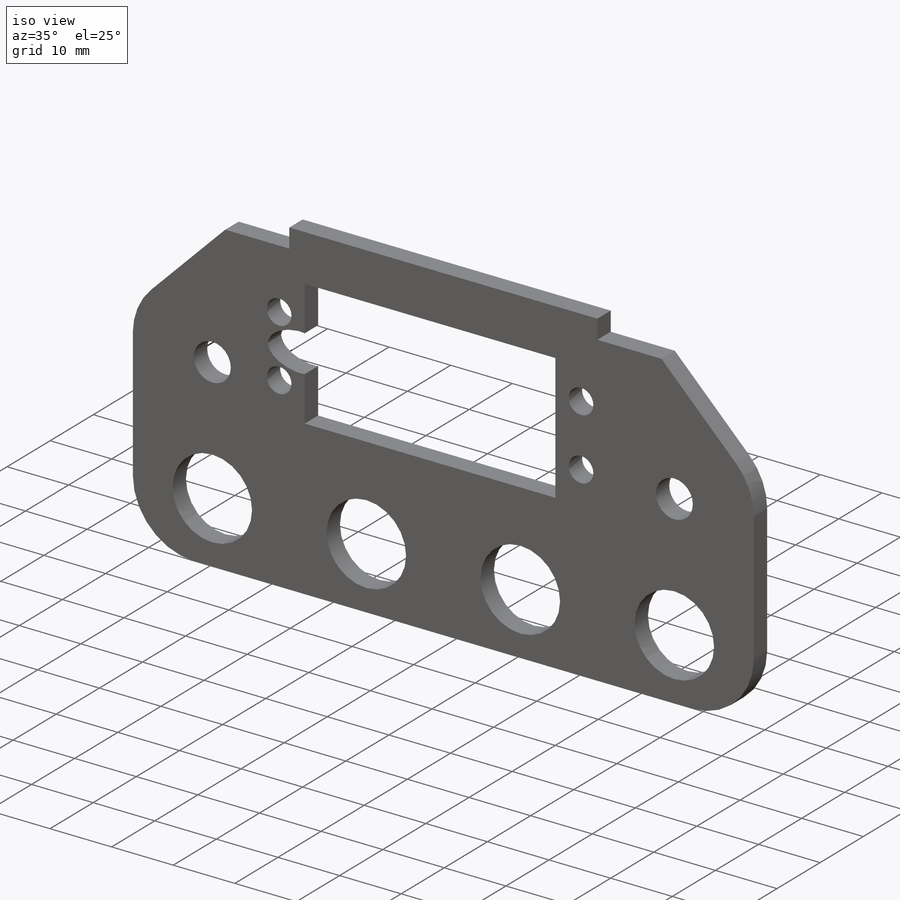
[diagram: iso view]
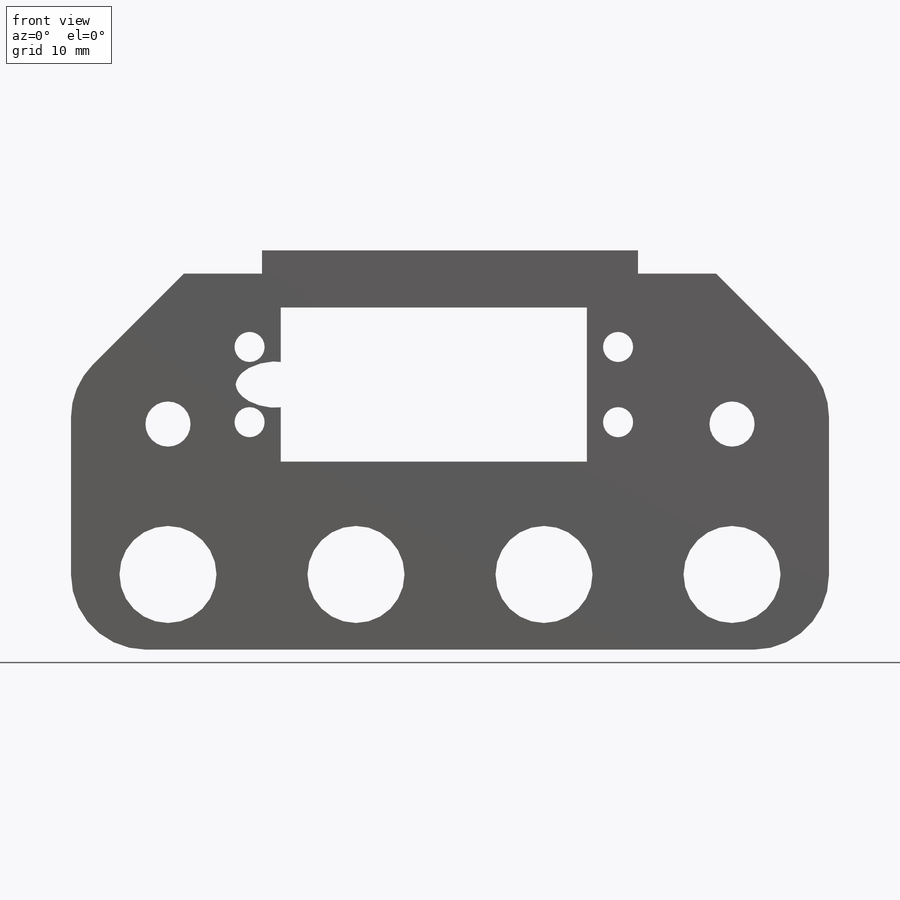
[diagram: front view]
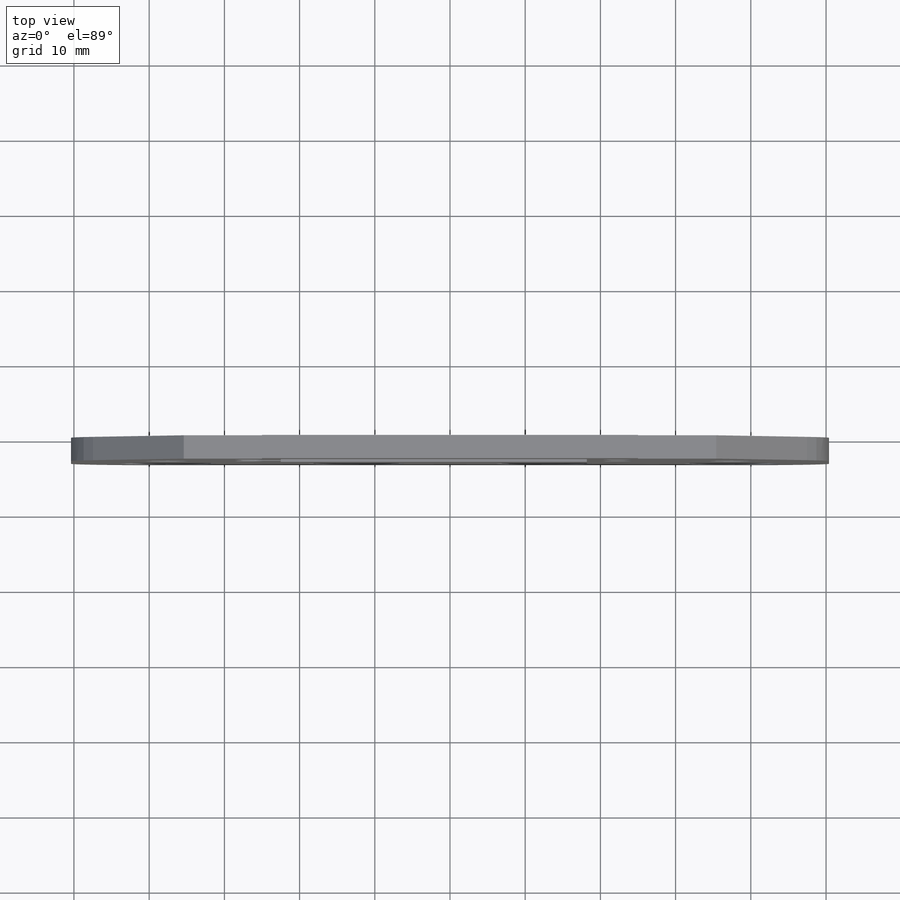
[diagram: top view]
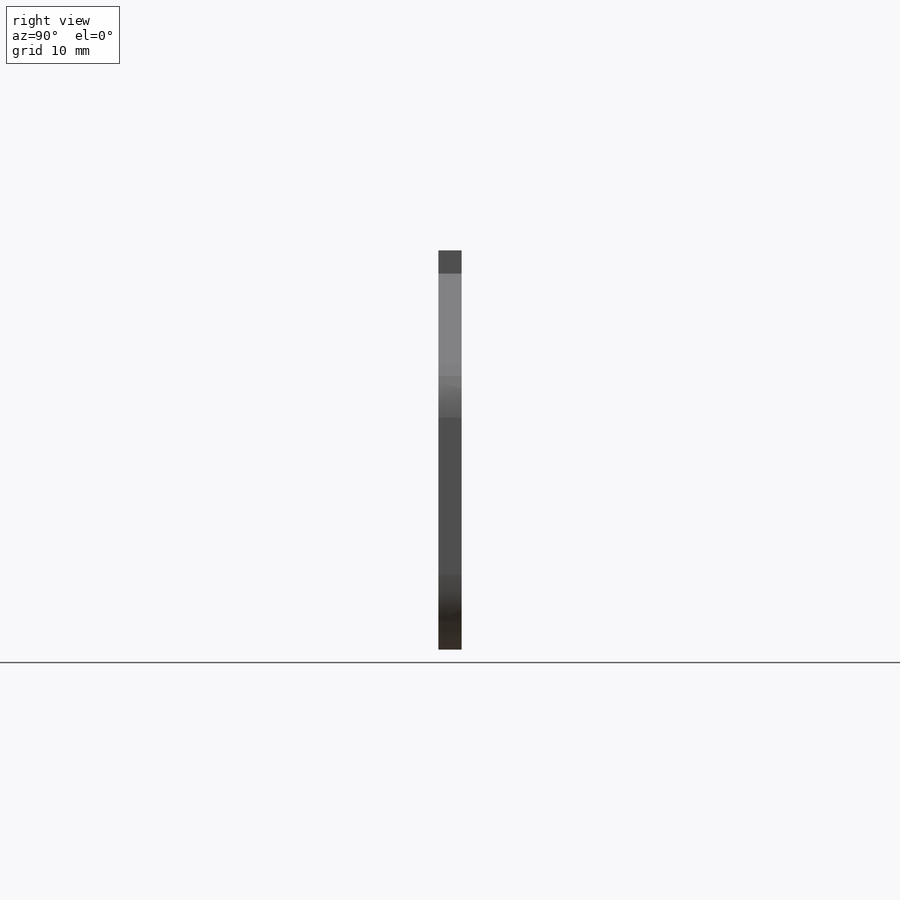
[diagram: right view]
SOLIDWORKS PART (.sldprt)
format: sldprt  version: not decoded by parser v0  size: 529,920 bytes
history: native  units: mm
features: sketch x3, extrude x2, fillet x2, material x1, cut_extrude x1, chamfer x1 (+13 scaffold rows collapsed)
feature tree (23):
  scaffold x13  (default folders/planes/origin — collapsed)
  material  "Teak"
  sketch  "Sketch4"  dims[c1.D4=5.0mm c1.D7=5.0mm c1.D12=10.0mm c1.D8=5.0mm c2.D4=5.0mm c2.D5=13.0mm c2.D7=12.9mm c2.D17=4.0mm c2.D19=4.0mm c2.D20=4.0mm c2.D12=~46.428864mm c3.D4=~18.571136mm c3.D8=13.0mm c3.D5=12.9mm c4.D4=12.9mm c4.D6=~8.328653mm c5.D6=6.0mm c5.D9=6.0mm c5.D1=100.0mm c5.D2=10.0mm c5.D3=50.0mm c6.D3=90.0deg c6.D5=10.1mm c6.D6=~43.353975mm c7.D6=90.0deg c8.D6=10.0mm c8.D8=10.0mm c8.D9=20.0mm c8.D10=~2.821347mm c8.D1=0.0mm c9.D8=25.0mm c9.D9=10.0mm c9.D10=10.0mm c9.D11=70.0mm c9.D12=30.0mm c9.D13=10.0mm c9.D14=0.0mm c10.D13=35.0mm c10.D3=70.0mm c10.D6=20.0mm c11.D3=70.0mm c11.D6=30.0mm c11.D11=100.0mm c11.D13=5.0mm c11.D15=25.0mm c11.D16=25.0mm c11.D4=25.0mm c11.D8=10.0mm c11.D9=10.0mm c12.D16=55.0mm c12.D18=8.0mm c12.D21=4.0mm c12.D22=4.0mm c12.D12=40.7mm c12.D23=20.5mm c12.D24=100.0mm c12.D25=20.5mm c13.D25=90.0deg c14.D25=40.7mm c15.D25=90.0deg c16.D25=40.7mm c16.D4=35.0mm c16.D8=10.0mm c16.D5=30.0mm c16.D3=12.9mm c17.D8=40.0mm c17.D9=40.0mm c18.D8=~59.169216mm c18.D9=10.0mm c19.D8=25.0mm c19.D11=90.0mm c19.D12=10.0mm c19.D2=50.0mm c19.D4=60.0mm c19.D6=20.0mm c20.D11=68.2625mm c20.D13=0.0mm c20.D15=0.0mm c20.D9=60.0mm c21.D11=53.1mm c21.D4=25.8mm c21.D3=25.0mm c22.D4=12.9mm c22.D6=20.0mm c22.D10=10.0mm c23.D6=25.0mm]
  extrude  "Boss-Extrude3"  Depth=3.1mm
  sketch  "Sketch5"  dims[c1.D5=4.0mm c1.D9=~5.836742mm c1.D10=~1.61494mm c1.D12=6.0mm c1.D1=40.7mm c1.D2=20.5mm c1.D3=10.0mm c1.D4=49.0mm c1.D6=20.5mm c1.D7=30.0mm c1.D8=6.0mm c2.D9=6.0mm c2.D10=10.0mm c2.D7=0.0mm c2.D6=15.0mm c3.D10=10.0mm c3.D11=25.25mm c3.D12=25.0mm c3.D7=0.0mm c4.D11=20.0mm c4.D13=75.0mm]
  cut_extrude  "Cut-Extrude4"  [1 undecoded]
  fillet  "Fillet1"  Radius=10mm
  sketch  "Sketch6"  dims[c1.D1=20.0mm c1.D2=30.0mm c1.D3=~35.86255mm c1.D4=35.25mm c1.D5=35.25mm c2.D4=35.25mm c2.D2=30.0mm c2.D1=3.1mm c3.D2=50.0mm c3.D3=0.0mm]
  extrude  "Boss-Extrude4"  [1 undecoded]
  chamfer  "Chamfer1"  Distance=15mm Angle=45deg
  fillet  "Fillet2"  Radius=10mm
decode coverage: 7 of 9 modeling features carry decoded parameters
note: ~ marks probable driven/reference dimensions
note: 2 parameter values undecoded
note: suppression state not decoded; provenance and decode notes live in map.json
